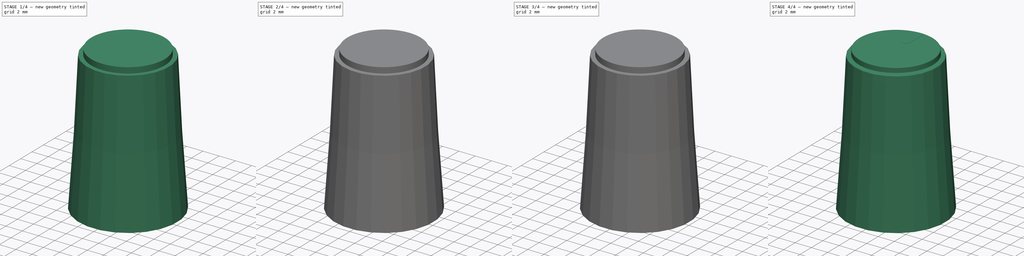
[diagram: build sequence overview — one tinted view per stage of 4, left to right]
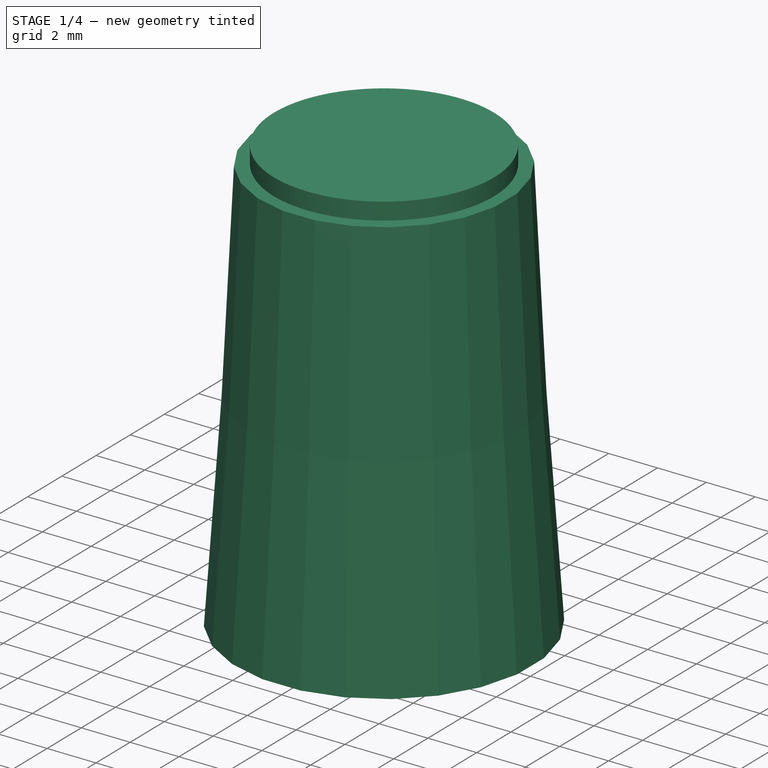
[diagram: stage 1 of 4 — iso view after this stage's code; geometry added in this stage tinted green]
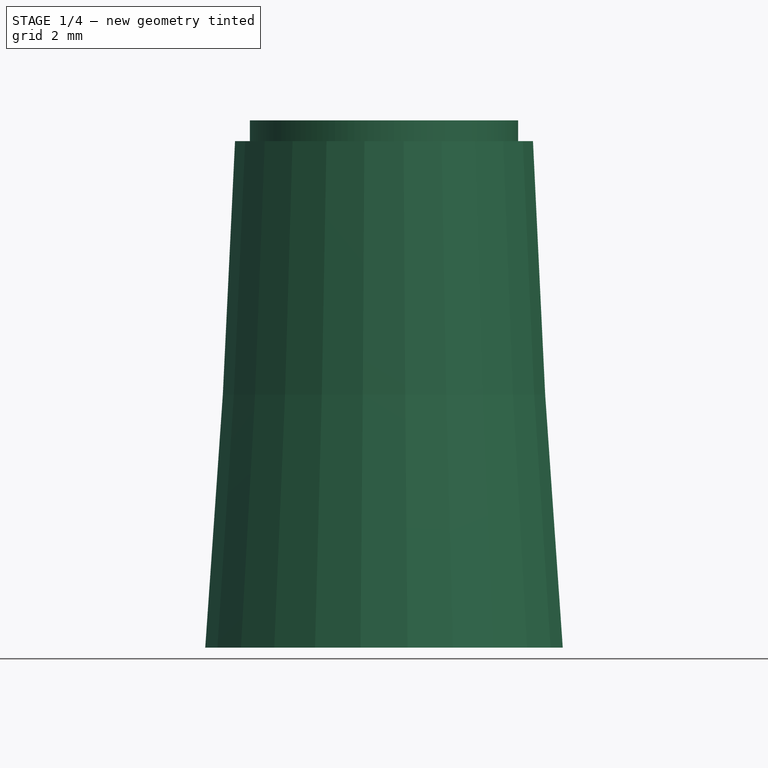
[diagram: stage 1 of 4 — front view after this stage's code; geometry added in this stage tinted green]
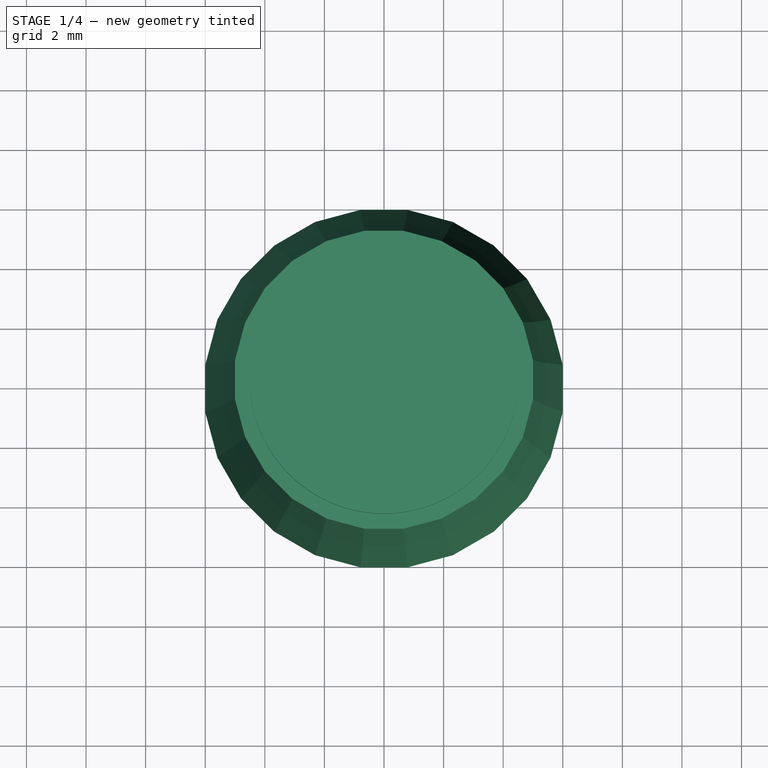
[diagram: stage 1 of 4 — top view after this stage's code; geometry added in this stage tinted green]
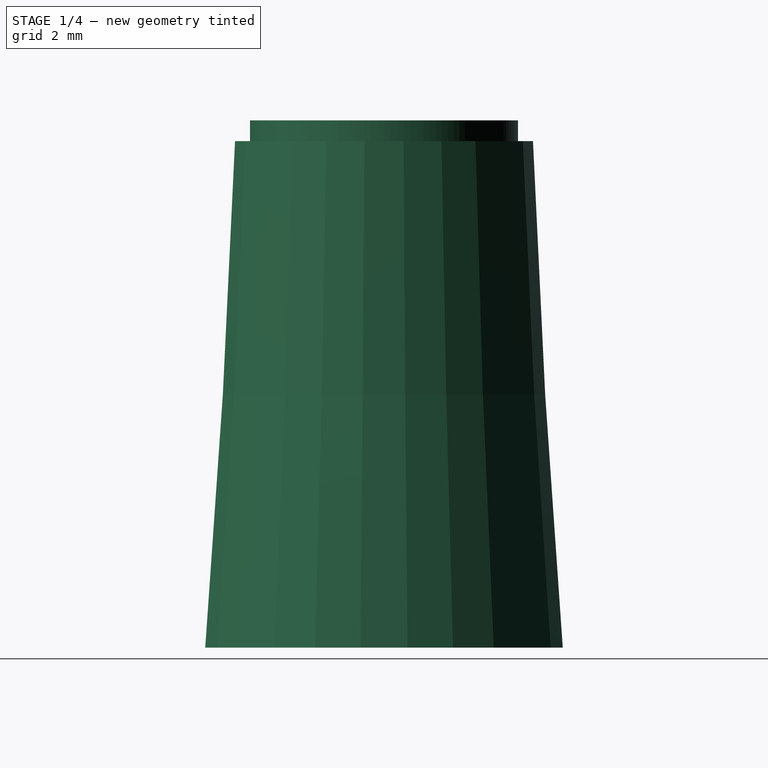
[diagram: stage 1 of 4 — right view after this stage's code; geometry added in this stage tinted green]
FCSTD DOCUMENT  (FreeCAD 0.18R15969 (Git))
Label: pot_cap_cliff_indicator
License: All rights reserved
LicenseURL: http://en.wikipedia.org/wiki/All_rights_reserved
objects: Sketcher::SketchObject×8, PartDesign::Pocket×3, PartDesign::Pad×2, PartDesign::Body×2, PartDesign::Chamfer×2, PartDesign::AdditiveLoft×1, PartDesign::Fillet×1
note: 25 computed .brp shape members not serialized (recipe doc carries the construction recipe); baked Part::Feature solids carry a one-line shape summary decoded from their .brp

FEATURE [Sketcher::SketchObject] Sketch
  MapMode = 5
  Support = -> [XY_Plane]
  sketch-geometry (25):
    g0: LineSegment StartX=-0.789915 StartY=6 StartZ=0 EndX=-2.31591 EndY=5.59111 EndZ=0
    g1: LineSegment StartX=-2.31591 StartY=5.59111 StartZ=0 EndX=-3.68409 EndY=4.80119 EndZ=0
    g2: LineSegment StartX=-3.68409 StartY=4.80119 StartZ=0 EndX=-4.80119 EndY=3.68409 EndZ=0
    g3: LineSegment StartX=-4.80119 StartY=3.68409 StartZ=0 EndX=-5.59111 EndY=2.31591 EndZ=0
    g4: LineSegment StartX=-5.59111 StartY=2.31591 StartZ=0 EndX=-6 EndY=0.789915 EndZ=0
    g5: LineSegment StartX=-6 StartY=0.789915 StartZ=0 EndX=-6 EndY=-0.789915 EndZ=0
    g6: LineSegment StartX=-6 StartY=-0.789915 StartZ=0 EndX=-5.59111 EndY=-2.31591 EndZ=0
    g7: LineSegment StartX=-5.59111 StartY=-2.31591 StartZ=0 EndX=-4.80119 EndY=-3.68409 EndZ=0
    g8: LineSegment StartX=-4.80119 StartY=-3.68409 StartZ=0 EndX=-3.68409 EndY=-4.80119 EndZ=0
    g9: LineSegment StartX=-3.68409 StartY=-4.80119 StartZ=0 EndX=-2.31591 EndY=-5.59111 EndZ=0
    g10: LineSegment StartX=-2.31591 StartY=-5.59111 StartZ=0 EndX=-0.789915 EndY=-6 EndZ=0
    g11: LineSegment StartX=-0.789915 StartY=-6 StartZ=0 EndX=0.789915 EndY=-6 EndZ=0
    g12: LineSegment StartX=0.789915 StartY=-6 StartZ=0 EndX=2.31591 EndY=-5.59111 EndZ=0
    g13: LineSegment StartX=2.31591 StartY=-5.59111 StartZ=0 EndX=3.68409 EndY=-4.80119 EndZ=0
    g14: LineSegment StartX=3.68409 StartY=-4.80119 StartZ=0 EndX=4.80119 EndY=-3.68409 EndZ=0
    g15: LineSegment StartX=4.80119 StartY=-3.68409 StartZ=0 EndX=5.59111 EndY=-2.31591 EndZ=0
    g16: LineSegment StartX=5.59111 StartY=-2.31591 StartZ=0 EndX=6 EndY=-0.789915 EndZ=0
    g17: LineSegment StartX=6 StartY=-0.789915 StartZ=0 EndX=6 EndY=0.789915 EndZ=0
    g18: LineSegment StartX=6 StartY=0.789915 StartZ=0 EndX=5.59111 EndY=2.31591 EndZ=0
    g19: LineSegment StartX=5.59111 StartY=2.31591 StartZ=0 EndX=4.80119 EndY=3.68409 EndZ=0
    g20: LineSegment StartX=4.80119 StartY=3.68409 StartZ=0 EndX=3.68409 EndY=4.80119 EndZ=0
    g21: LineSegment StartX=3.68409 StartY=4.80119 StartZ=0 EndX=2.31591 EndY=5.59111 EndZ=0
    g22: LineSegment StartX=2.31591 StartY=5.59111 StartZ=0 EndX=0.789915 EndY=6 EndZ=0
    g23: LineSegment StartX=0.789915 StartY=6 StartZ=0 EndX=-0.789915 EndY=6 EndZ=0
    g24: Circle [constr] CenterX=0 CenterY=0 CenterZ=0 NormalX=0 NormalY=0 NormalZ=1 AngleXU=0 Radius=6.05177
  constraints (52):
    c: Coincident(g0,g1)
    c: Coincident(g1,g2)
    c: Coincident(g2,g3)
    c: Coincident(g3,g4)
    c: Coincident(g4,g5)
    c: Coincident(g5,g6)
    c: Coincident(g6,g7)
    c: Coincident(g7,g8)
    c: Coincident(g8,g9)
    c: Coincident(g9,g10)
    c: Coincident(g10,g11)
    c: Coincident(g11,g12)
    c: Coincident(g12,g13)
    c: Coincident(g13,g14)
    c: Coincident(g14,g15)
    c: Coincident(g15,g16)
    c: Coincident(g16,g17)
    c: Coincident(g17,g18)
    c: Coincident(g18,g19)
    c: Coincident(g19,g20)
    c: Coincident(g20,g21)
    c: Coincident(g21,g22)
    c: Coincident(g22,g23)
    c: Coincident(g23,g0)
    c: Equal(g0, g1-g23) x23
    c: PointOnObject(g0,g24)
    c: PointOnObject(g1,g24)
    c: PointOnObject(g2,g24)
    c: PointOnObject(g3,g24)
    c: PointOnObject(g4,g24)
    c: PointOnObject(g5,g24)
    c: PointOnObject(g6,g24)
    c: PointOnObject(g7,g24)
    c: PointOnObject(g8,g24)
    c: PointOnObject(g9,g24)
    c: PointOnObject(g10,g24)
    c: PointOnObject(g11,g24)
    c: PointOnObject(g12,g24)
    c: PointOnObject(g13,g24)
    c: PointOnObject(g14,g24)
    c: PointOnObject(g15,g24)
    c: PointOnObject(g16,g24)
    c: PointOnObject(g17,g24)
    c: PointOnObject(g18,g24)
    c: PointOnObject(g19,g24)
    c: PointOnObject(g20,g24)
    c: PointOnObject(g21,g24)
    c: PointOnObject(g22,g24)
    c: PointOnObject(g23,g24)
    c: Coincident(g24,g-1)
    c: Horizontal(g23)
    c: DistanceX(g4,g17) = 12
FEATURE [Sketcher::SketchObject] Sketch001
  AttachmentOffset = pos=(0,0,7) rot=(0,0,1;0rad)
  MapMode = 5
  Placement = pos=(0,0,7) rot=(0,0,1;0rad)
  Support = -> [XY_Plane]
  sketch-geometry (25):
    g0: LineSegment StartX=-0.724089 StartY=5.5 StartZ=0 EndX=-2.12292 EndY=5.12518 EndZ=0
    g1: LineSegment StartX=-2.12292 StartY=5.12518 StartZ=0 EndX=-3.37708 EndY=4.4011 EndZ=0
    g2: LineSegment StartX=-3.37708 StartY=4.4011 StartZ=0 EndX=-4.4011 EndY=3.37708 EndZ=0
    g3: LineSegment StartX=-4.4011 StartY=3.37708 StartZ=0 EndX=-5.12518 EndY=2.12292 EndZ=0
    g4: LineSegment StartX=-5.12518 StartY=2.12292 StartZ=0 EndX=-5.5 EndY=0.724089 EndZ=0
    g5: LineSegment StartX=-5.5 StartY=0.724089 StartZ=0 EndX=-5.5 EndY=-0.724089 EndZ=0
    g6: LineSegment StartX=-5.5 StartY=-0.724089 StartZ=0 EndX=-5.12518 EndY=-2.12292 EndZ=0
    g7: LineSegment StartX=-5.12518 StartY=-2.12292 StartZ=0 EndX=-4.4011 EndY=-3.37708 EndZ=0
    g8: LineSegment StartX=-4.4011 StartY=-3.37708 StartZ=0 EndX=-3.37708 EndY=-4.4011 EndZ=0
    g9: LineSegment StartX=-3.37708 StartY=-4.4011 StartZ=0 EndX=-2.12292 EndY=-5.12518 EndZ=0
    g10: LineSegment StartX=-2.12292 StartY=-5.12518 StartZ=0 EndX=-0.724089 EndY=-5.5 EndZ=0
    g11: LineSegment StartX=-0.724089 StartY=-5.5 StartZ=0 EndX=0.724089 EndY=-5.5 EndZ=0
    g12: LineSegment StartX=0.724089 StartY=-5.5 StartZ=0 EndX=2.12292 EndY=-5.12518 EndZ=0
    g13: LineSegment StartX=2.12292 StartY=-5.12518 StartZ=0 EndX=3.37708 EndY=-4.4011 EndZ=0
    g14: LineSegment StartX=3.37708 StartY=-4.4011 StartZ=0 EndX=4.4011 EndY=-3.37708 EndZ=0
    g15: LineSegment StartX=4.4011 StartY=-3.37708 StartZ=0 EndX=5.12518 EndY=-2.12292 EndZ=0
    g16: LineSegment StartX=5.12518 StartY=-2.12292 StartZ=0 EndX=5.5 EndY=-0.724089 EndZ=0
    g17: LineSegment StartX=5.5 StartY=-0.724089 StartZ=0 EndX=5.5 EndY=0.724089 EndZ=0
    g18: LineSegment StartX=5.5 StartY=0.724089 StartZ=0 EndX=5.12518 EndY=2.12292 EndZ=0
    g19: LineSegment StartX=5.12518 StartY=2.12292 StartZ=0 EndX=4.4011 EndY=3.37708 EndZ=0
    g20: LineSegment StartX=4.4011 StartY=3.37708 StartZ=0 EndX=3.37708 EndY=4.4011 EndZ=0
    g21: LineSegment StartX=3.37708 StartY=4.4011 StartZ=0 EndX=2.12292 EndY=5.12518 EndZ=0
    g22: LineSegment StartX=2.12292 StartY=5.12518 StartZ=0 EndX=0.724089 EndY=5.5 EndZ=0
    g23: LineSegment StartX=0.724089 StartY=5.5 StartZ=0 EndX=-0.724089 EndY=5.5 EndZ=0
    g24: Circle [constr] CenterX=0 CenterY=0 CenterZ=0 NormalX=0 NormalY=0 NormalZ=1 AngleXU=0 Radius=5.54746
  constraints (52):
    c: Coincident(g0,g1)
    c: Coincident(g1,g2)
    c: Coincident(g2,g3)
    c: Coincident(g3,g4)
    c: Coincident(g4,g5)
    c: Coincident(g5,g6)
    c: Coincident(g6,g7)
    c: Coincident(g7,g8)
    c: Coincident(g8,g9)
    c: Coincident(g9,g10)
    c: Coincident(g10,g11)
    c: Coincident(g11,g12)
    c: Coincident(g12,g13)
    c: Coincident(g13,g14)
    c: Coincident(g14,g15)
    c: Coincident(g15,g16)
    c: Coincident(g16,g17)
    c: Coincident(g17,g18)
    c: Coincident(g18,g19)
    c: Coincident(g19,g20)
    c: Coincident(g20,g21)
    c: Coincident(g21,g22)
    c: Coincident(g22,g23)
    c: Coincident(g23,g0)
    c: Equal(g0, g1-g23) x23
    c: PointOnObject(g0,g24)
    c: PointOnObject(g1,g24)
    c: PointOnObject(g2,g24)
    c: PointOnObject(g3,g24)
    c: PointOnObject(g4,g24)
    c: PointOnObject(g5,g24)
    c: PointOnObject(g6,g24)
    c: PointOnObject(g7,g24)
    c: PointOnObject(g8,g24)
    c: PointOnObject(g9,g24)
    c: PointOnObject(g10,g24)
    c: PointOnObject(g11,g24)
    c: PointOnObject(g12,g24)
    c: PointOnObject(g13,g24)
    c: PointOnObject(g14,g24)
    c: PointOnObject(g15,g24)
    c: PointOnObject(g16,g24)
    c: PointOnObject(g17,g24)
    c: PointOnObject(g18,g24)
    c: PointOnObject(g19,g24)
    c: PointOnObject(g20,g24)
    c: PointOnObject(g21,g24)
    c: PointOnObject(g22,g24)
    c: PointOnObject(g23,g24)
    c: Coincident(g24,g-1)
    c: Horizontal(g23)
    c: DistanceX(g4,g17) = 11
FEATURE [Sketcher::SketchObject] Sketch002
  AttachmentOffset = pos=(0,0,17) rot=(0,0,1;0rad)
  MapMode = 5
  Placement = pos=(0,0,17) rot=(0,0,1;0rad)
  Support = -> [XY_Plane]
  sketch-geometry (25):
    g0: LineSegment StartX=-4.65926 StartY=1.92993 StartZ=0 EndX=-5 EndY=0.658262 EndZ=0
    g1: LineSegment StartX=-5 StartY=0.658262 StartZ=0 EndX=-5 EndY=-0.658262 EndZ=0
    g2: LineSegment StartX=-5 StartY=-0.658262 StartZ=0 EndX=-4.65926 EndY=-1.92993 EndZ=0
    g3: LineSegment StartX=-4.65926 StartY=-1.92993 StartZ=0 EndX=-4.001 EndY=-3.07007 EndZ=0
    g4: LineSegment StartX=-4.001 StartY=-3.07007 StartZ=0 EndX=-3.07007 EndY=-4.001 EndZ=0
    g5: LineSegment StartX=-3.07007 StartY=-4.001 StartZ=0 EndX=-1.92993 EndY=-4.65926 EndZ=0
    g6: LineSegment StartX=-1.92993 StartY=-4.65926 StartZ=0 EndX=-0.658262 EndY=-5 EndZ=0
    g7: LineSegment StartX=-0.658262 StartY=-5 StartZ=0 EndX=0.658262 EndY=-5 EndZ=0
    g8: LineSegment StartX=0.658262 StartY=-5 StartZ=0 EndX=1.92993 EndY=-4.65926 EndZ=0
    g9: LineSegment StartX=1.92993 StartY=-4.65926 StartZ=0 EndX=3.07007 EndY=-4.001 EndZ=0
    g10: LineSegment StartX=3.07007 StartY=-4.001 StartZ=0 EndX=4.001 EndY=-3.07007 EndZ=0
    g11: LineSegment StartX=4.001 StartY=-3.07007 StartZ=0 EndX=4.65926 EndY=-1.92993 EndZ=0
    g12: LineSegment StartX=4.65926 StartY=-1.92993 StartZ=0 EndX=5 EndY=-0.658262 EndZ=0
    g13: LineSegment StartX=5 StartY=-0.658262 StartZ=0 EndX=5 EndY=0.658262 EndZ=0
    g14: LineSegment StartX=5 StartY=0.658262 StartZ=0 EndX=4.65926 EndY=1.92993 EndZ=0
    g15: LineSegment StartX=4.65926 StartY=1.92993 StartZ=0 EndX=4.001 EndY=3.07007 EndZ=0
    g16: LineSegment StartX=4.001 StartY=3.07007 StartZ=0 EndX=3.07007 EndY=4.001 EndZ=0
    g17: LineSegment StartX=3.07007 StartY=4.001 StartZ=0 EndX=1.92993 EndY=4.65926 EndZ=0
    g18: LineSegment StartX=1.92993 StartY=4.65926 StartZ=0 EndX=0.658262 EndY=5 EndZ=0
    g19: LineSegment StartX=0.658262 StartY=5 StartZ=0 EndX=-0.658262 EndY=5 EndZ=0
    g20: LineSegment StartX=-0.658262 StartY=5 StartZ=0 EndX=-1.92993 EndY=4.65926 EndZ=0
    g21: LineSegment StartX=-1.92993 StartY=4.65926 StartZ=0 EndX=-3.07007 EndY=4.001 EndZ=0
    g22: LineSegment StartX=-3.07007 StartY=4.001 StartZ=0 EndX=-4.001 EndY=3.07007 EndZ=0
    g23: LineSegment StartX=-4.001 StartY=3.07007 StartZ=0 EndX=-4.65926 EndY=1.92993 EndZ=0
    g24: Circle [constr] CenterX=0 CenterY=0 CenterZ=0 NormalX=0 NormalY=0 NormalZ=1 AngleXU=0 Radius=5.04314
  constraints (52):
    c: Coincident(g0,g1)
    c: Coincident(g1,g2)
    c: Coincident(g2,g3)
    c: Coincident(g3,g4)
    c: Coincident(g4,g5)
    c: Coincident(g5,g6)
    c: Coincident(g6,g7)
    c: Coincident(g7,g8)
    c: Coincident(g8,g9)
    c: Coincident(g9,g10)
    c: Coincident(g10,g11)
    c: Coincident(g11,g12)
    c: Coincident(g12,g13)
    c: Coincident(g13,g14)
    c: Coincident(g14,g15)
    c: Coincident(g15,g16)
    c: Coincident(g16,g17)
    c: Coincident(g17,g18)
    c: Coincident(g18,g19)
    c: Coincident(g19,g20)
    c: Coincident(g20,g21)
    c: Coincident(g21,g22)
    c: Coincident(g22,g23)
    c: Coincident(g23,g0)
    c: Equal(g0, g1-g23) x23
    c: PointOnObject(g0,g24)
    c: PointOnObject(g1,g24)
    c: PointOnObject(g2,g24)
    c: PointOnObject(g3,g24)
    c: PointOnObject(g4,g24)
    c: PointOnObject(g5,g24)
    c: PointOnObject(g6,g24)
    c: PointOnObject(g7,g24)
    c: PointOnObject(g8,g24)
    c: PointOnObject(g9,g24)
    c: PointOnObject(g10,g24)
    c: PointOnObject(g11,g24)
    c: PointOnObject(g12,g24)
    c: PointOnObject(g13,g24)
    c: PointOnObject(g14,g24)
    c: PointOnObject(g15,g24)
    c: PointOnObject(g16,g24)
    c: PointOnObject(g17,g24)
    c: PointOnObject(g18,g24)
    c: PointOnObject(g19,g24)
    c: PointOnObject(g20,g24)
    c: PointOnObject(g21,g24)
    c: PointOnObject(g22,g24)
    c: PointOnObject(g23,g24)
    c: Coincident(g24,g-1)
    c: Horizontal(g19)
    c: DistanceX(g0,g13) = 10
FEATURE [PartDesign::AdditiveLoft] AdditiveLoft
  Closed = false
  Profile = -> Sketch
  Refine = true
  Ruled = false
  Sections = -> [Sketch001,Sketch002]
FEATURE [Sketcher::SketchObject] Sketch003
  MapMode = 5
  Placement = pos=(0,0,17) rot=(0,0,1;0rad)
  Support = -> [AdditiveLoft]
  sketch-geometry (1):
    g0: Circle CenterX=0 CenterY=0 CenterZ=0 NormalX=0 NormalY=0 NormalZ=1 AngleXU=0 Radius=4.5
  constraints (2):
    c: Coincident(g0,g-1)
    c: Radius(g0) = 4.5
FEATURE [PartDesign::Pad] Pad
  BaseFeature = -> AdditiveLoft
  Length = 0.7
  Length2 = 100
  Profile = -> Sketch003
  Refine = true
  Type = 0
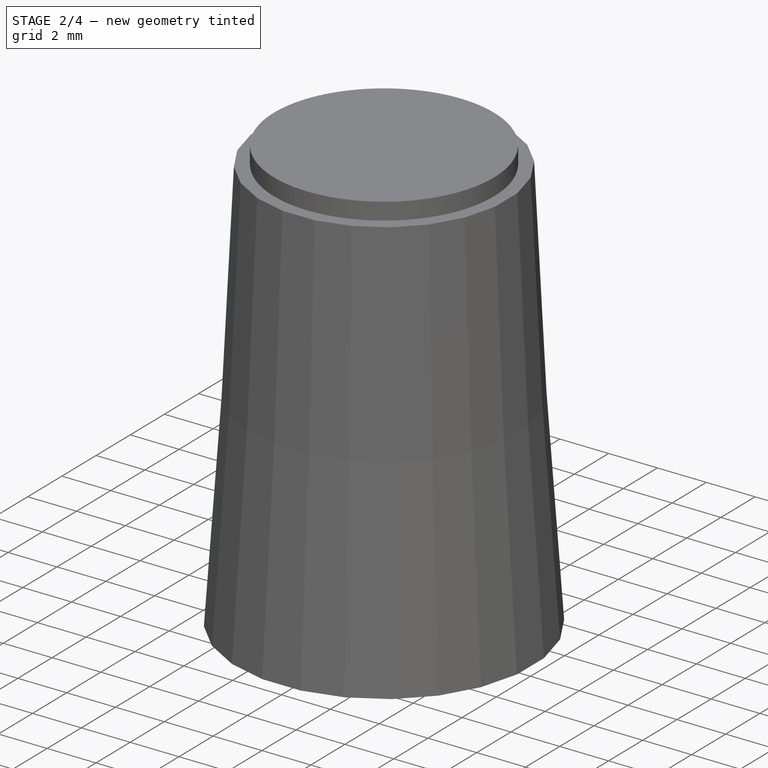
[diagram: stage 2 of 4 — iso view after this stage's code; geometry added in this stage tinted green]
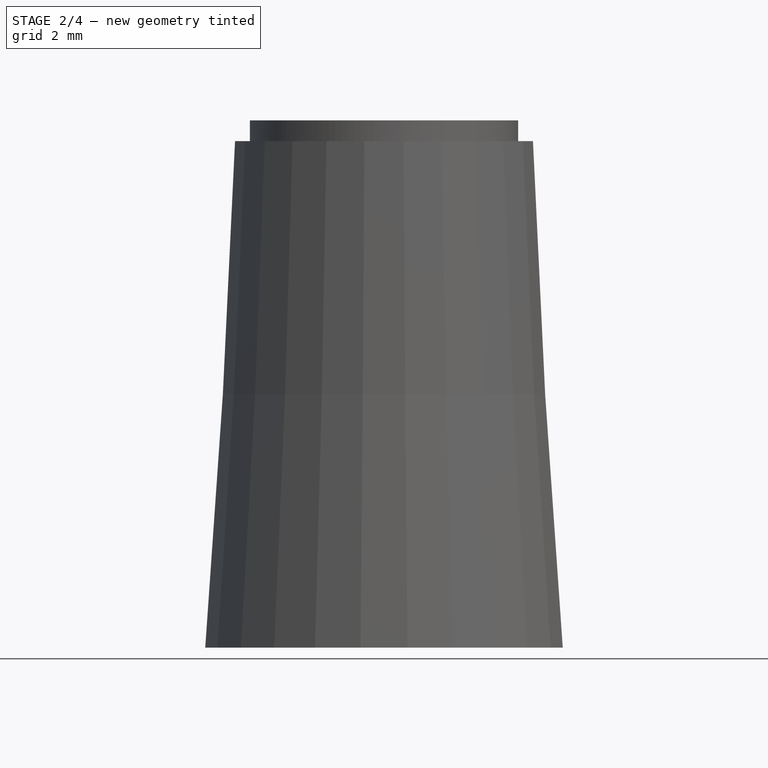
[diagram: stage 2 of 4 — front view after this stage's code; geometry added in this stage tinted green]
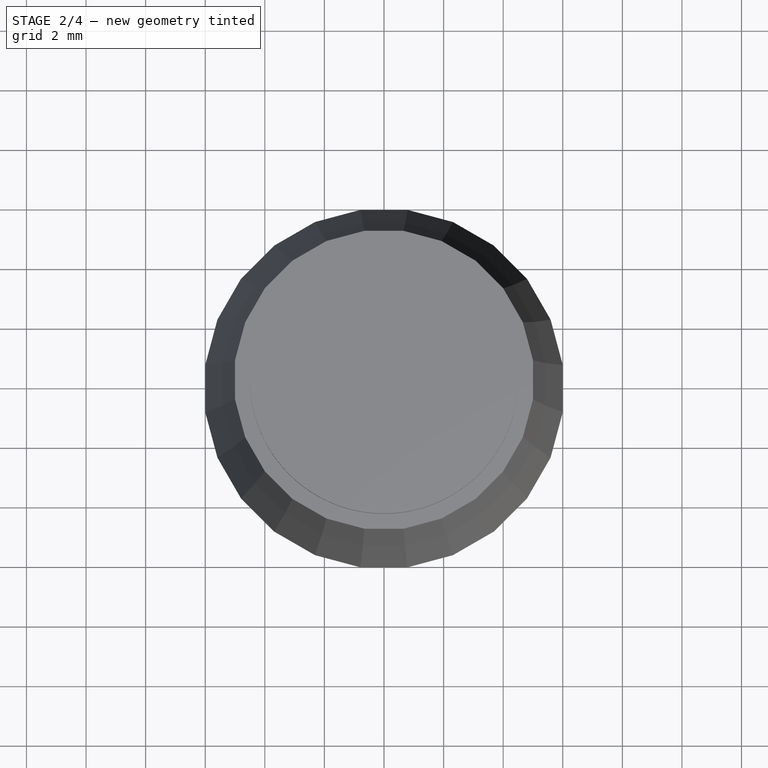
[diagram: stage 2 of 4 — top view after this stage's code; geometry added in this stage tinted green]
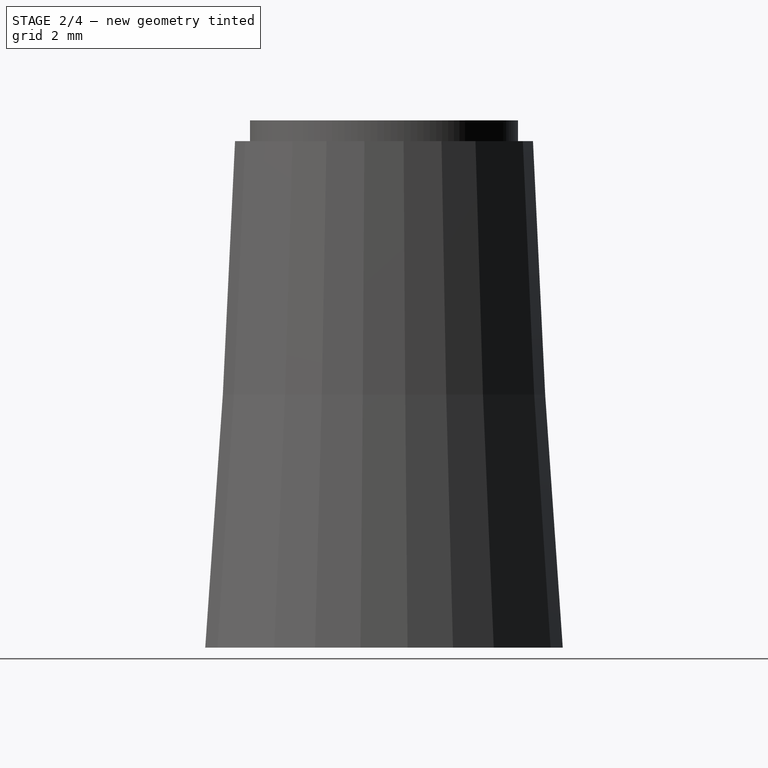
[diagram: stage 2 of 4 — right view after this stage's code; geometry added in this stage tinted green]
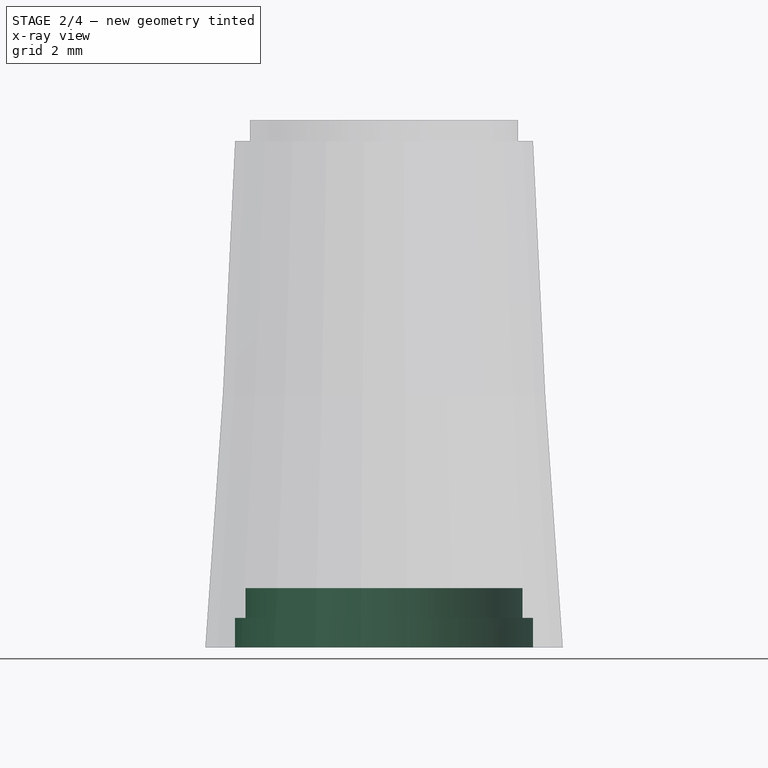
[diagram: stage 2 of 4 — x-ray composite at the front view; earlier geometry ghosted, this stage's added geometry solid]
FEATURE [PartDesign::Body] Body001  label="Indicator"
  Group = -> [Sketch004,Pad001]
  Origin = -> Origin001
  Tip = -> Pad001
FEATURE [Sketcher::SketchObject] Sketch005
  MapMode = 5
  Placement = pos=(0,0,0) rot=(1,0,0;3.14159rad)
  Support = -> [Pad]
  sketch-geometry (1):
    g0: Circle CenterX=0 CenterY=0 CenterZ=0 NormalX=0 NormalY=0 NormalZ=1 AngleXU=0 Radius=5
  constraints (2):
    c: Coincident(g0,g-1)
    c: Radius(g0) = 5
FEATURE [PartDesign::Pocket] Pocket
  BaseFeature = -> Pad
  Length = 1
  Length2 = 100
  Profile = -> Sketch005
  Refine = true
  Type = 0
FEATURE [Sketcher::SketchObject] Sketch006
  MapMode = 5
  Placement = pos=(0,0,1) rot=(1,0,0;3.14159rad)
  Support = -> [Pocket]
  sketch-geometry (1):
    g0: Circle CenterX=0 CenterY=0 CenterZ=0 NormalX=0 NormalY=0 NormalZ=1 AngleXU=0 Radius=4.65
  constraints (2):
    c: Coincident(g0,g-1)
    c: Radius(g0) = 4.65
FEATURE [PartDesign::Pocket] Pocket001
  BaseFeature = -> Pocket
  Length = 1
  Length2 = 100
  Profile = -> Sketch006
  Refine = true
  Type = 0
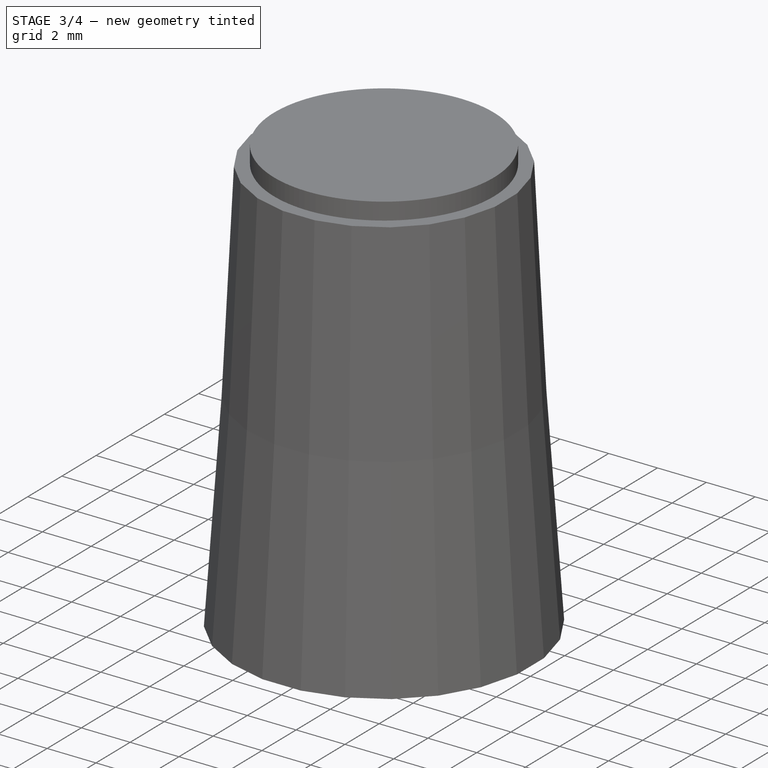
[diagram: stage 3 of 4 — iso view after this stage's code; geometry added in this stage tinted green]
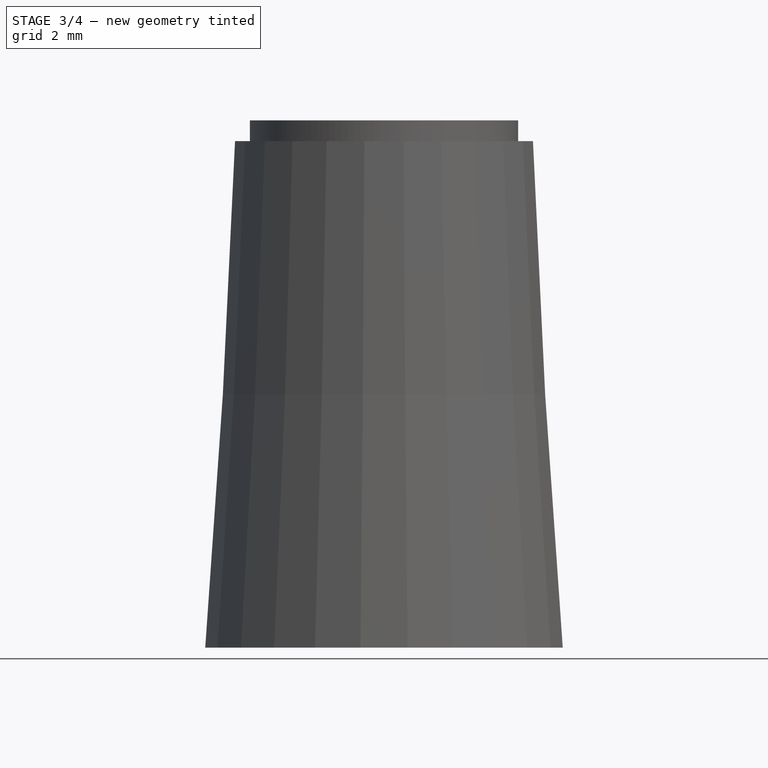
[diagram: stage 3 of 4 — front view after this stage's code; geometry added in this stage tinted green]
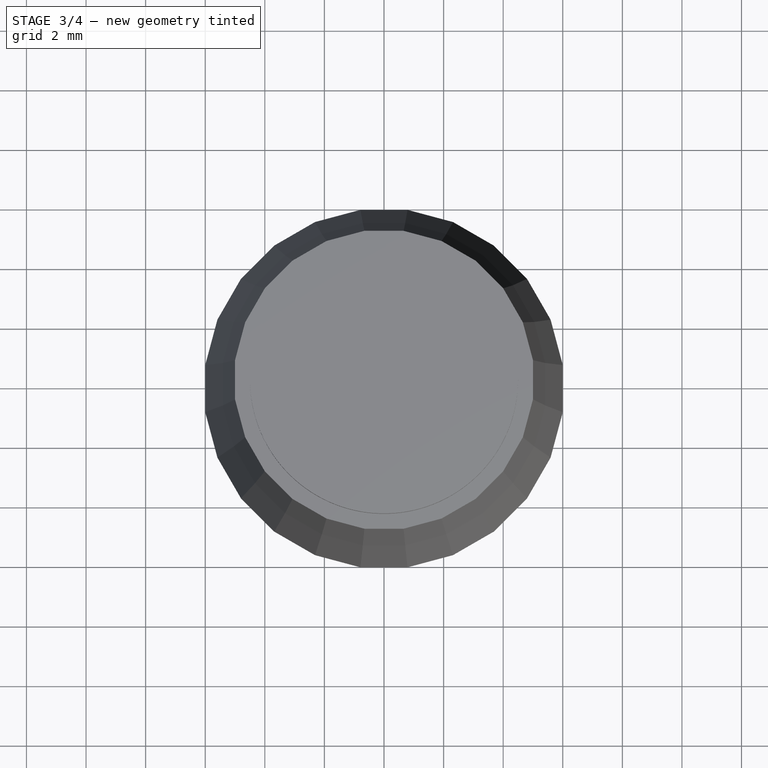
[diagram: stage 3 of 4 — top view after this stage's code; geometry added in this stage tinted green]
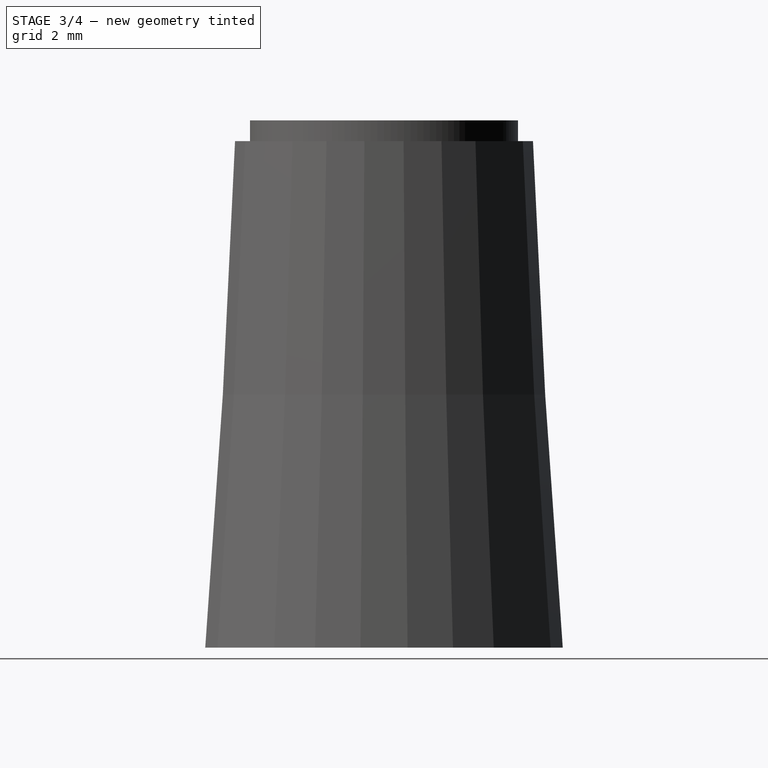
[diagram: stage 3 of 4 — right view after this stage's code; geometry added in this stage tinted green]
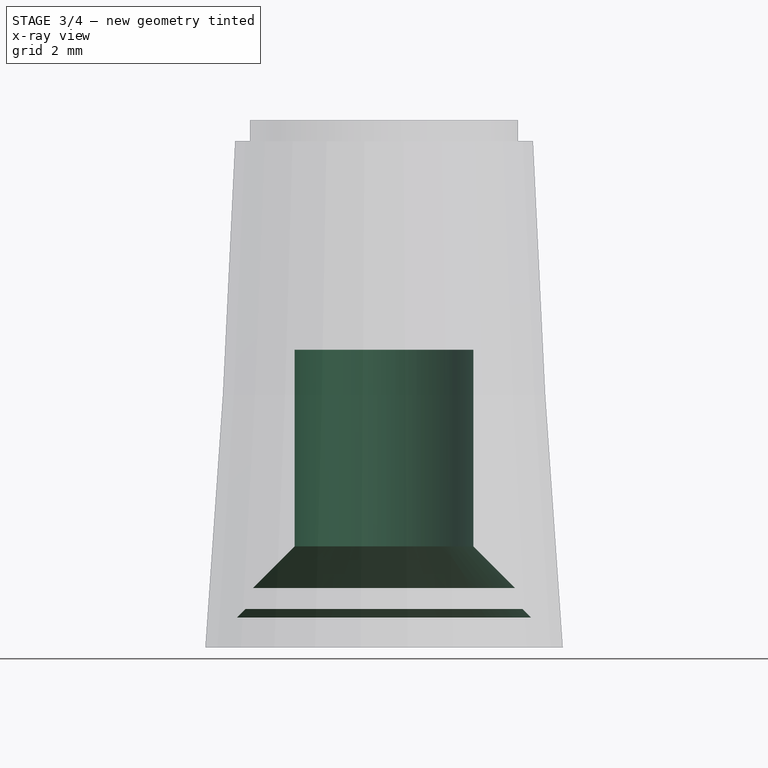
[diagram: stage 3 of 4 — x-ray composite at the front view; earlier geometry ghosted, this stage's added geometry solid]
FEATURE [Sketcher::SketchObject] Sketch007
  MapMode = 5
  Placement = pos=(0,0,2) rot=(1,0,0;3.14159rad)
  Support = -> [Pocket001]
  sketch-geometry (2):
    g0: ArcOfCircle CenterX=0 CenterY=0 CenterZ=0 NormalX=0 NormalY=0 NormalZ=1 AngleXU=0 Radius=3 StartAngle=2.19024 EndAngle=7.23453
    g1: LineSegment StartX=-1.74176 StartY=2.4426 StartZ=0 EndX=1.74176 EndY=2.4426 EndZ=0
  constraints (5):
    c: Coincident(g0,g-1)
    c: Coincident(g1,g0)
    c: Coincident(g1,g0)
    c: Horizontal(g1)
    c: Radius(g0) = 3
FEATURE [PartDesign::Pocket] Pocket002
  BaseFeature = -> Pocket001
  Length = 8
  Length2 = 100
  Profile = -> Sketch007
  Refine = true
  Type = 0
FEATURE [PartDesign::Chamfer] Chamfer
  Base = -> Pocket002 [Edge82,Edge83]
  BaseFeature = -> Pocket002
  Size = 1.4
FEATURE [PartDesign::Chamfer] Chamfer001
  Base = -> Chamfer [Edge8]
  BaseFeature = -> Chamfer
  Size = 0.3
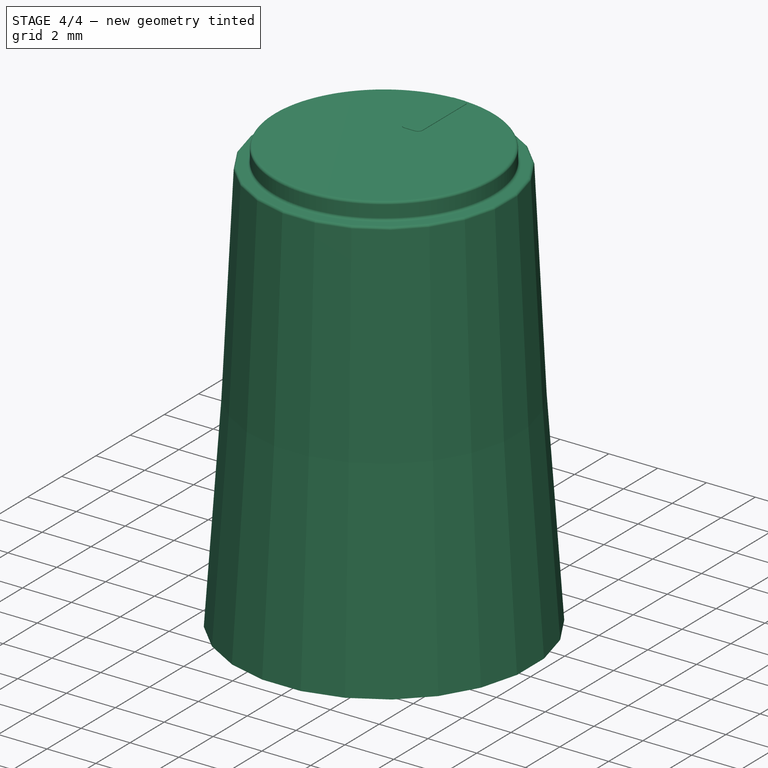
[diagram: stage 4 of 4 — iso view after this stage's code; geometry added in this stage tinted green]
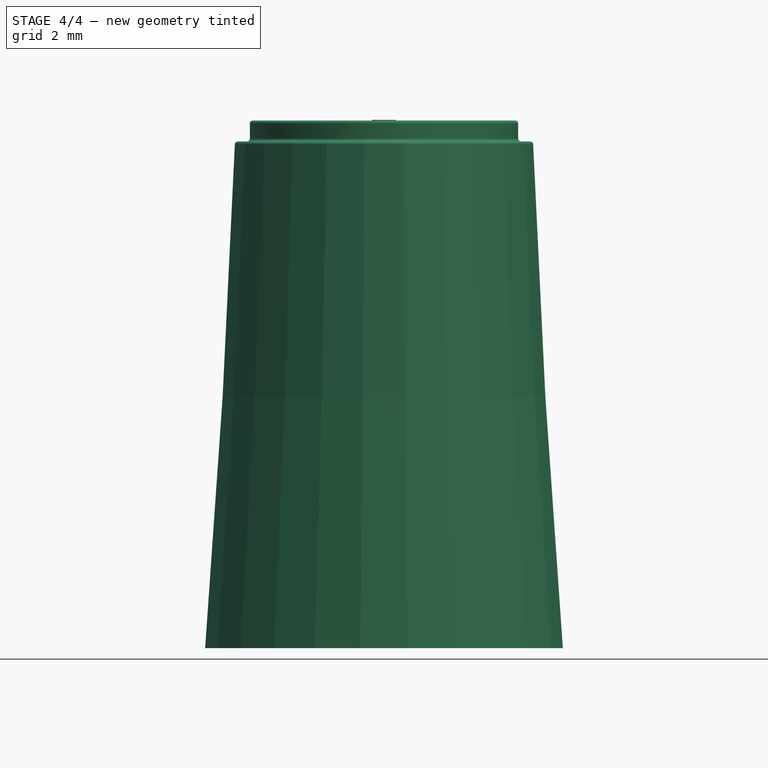
[diagram: stage 4 of 4 — front view after this stage's code; geometry added in this stage tinted green]
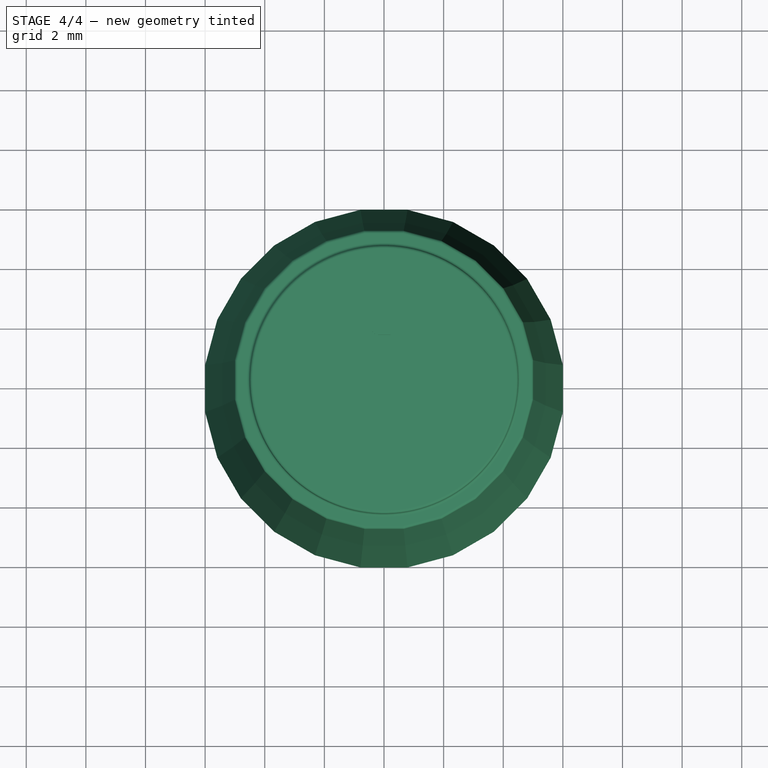
[diagram: stage 4 of 4 — top view after this stage's code; geometry added in this stage tinted green]
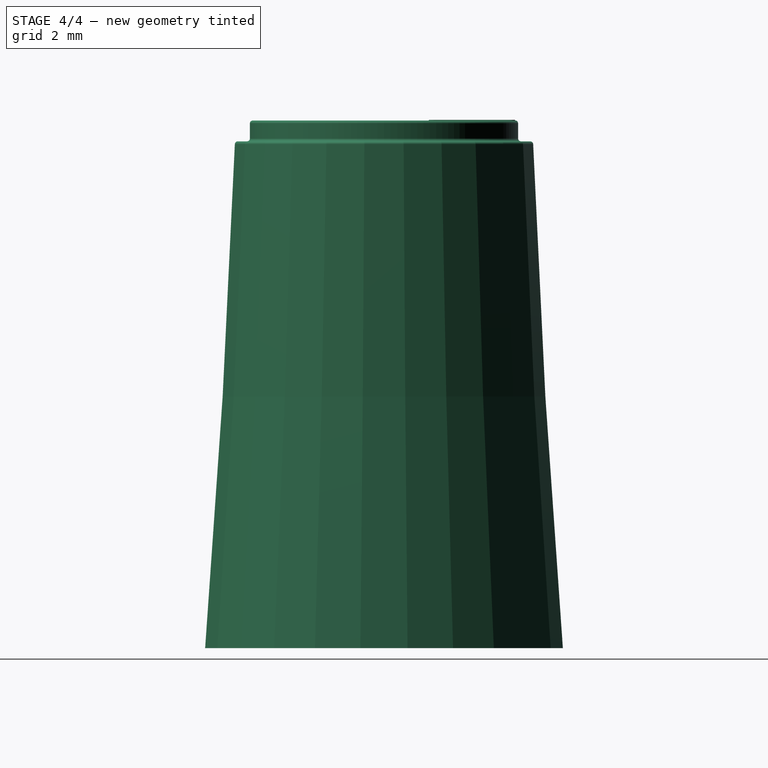
[diagram: stage 4 of 4 — right view after this stage's code; geometry added in this stage tinted green]
FEATURE [Sketcher::SketchObject] Sketch004
  AttachmentOffset = pos=(0,0,17.7) rot=(0,0,1;0rad)
  MapMode = 5
  Placement = pos=(0,0,17.7) rot=(0,0,1;0rad)
  Support = -> [XY_Plane001]
  sketch-geometry (10):
    g0: LineSegment StartX=-0.2 StartY=1.5 StartZ=0 EndX=0.2 EndY=1.5 EndZ=0
    g1: LineSegment StartX=0.4 StartY=1.7 StartZ=0 EndX=0.4 EndY=4.2 EndZ=0
    g2: LineSegment StartX=0.2 StartY=4.4 StartZ=0 EndX=-0.2 EndY=4.4 EndZ=0
    g3: LineSegment StartX=-0.4 StartY=4.2 StartZ=0 EndX=-0.4 EndY=1.7 EndZ=0
    g4: ArcOfCircle CenterX=-0.2 CenterY=1.7 CenterZ=0 NormalX=0 NormalY=0 NormalZ=1 AngleXU=0 Radius=0.2 StartAngle=3.14159 EndAngle=4.71239
    g5: ArcOfCircle CenterX=0.2 CenterY=1.7 CenterZ=0 NormalX=0 NormalY=0 NormalZ=1 AngleXU=0 Radius=0.2 StartAngle=4.71239 EndAngle=6.28319
    g6: ArcOfCircle CenterX=0.2 CenterY=4.2 CenterZ=0 NormalX=0 NormalY=0 NormalZ=1 AngleXU=0 Radius=0.2 StartAngle=1.4e-15 EndAngle=1.5708
    g7: ArcOfCircle CenterX=-0.2 CenterY=4.2 CenterZ=0 NormalX=0 NormalY=0 NormalZ=1 AngleXU=0 Radius=0.2 StartAngle=1.5708 EndAngle=3.14159
    g8: LineSegment [constr] StartX=-0.2 StartY=1.7 StartZ=0 EndX=0 EndY=0 EndZ=0
    g9: LineSegment [constr] StartX=0 StartY=0 StartZ=0 EndX=0.2 EndY=1.7 EndZ=0
  constraints (24):
    c: Horizontal(g0)
    c: Horizontal(g2)
    c: Vertical(g1)
    c: Vertical(g3)
    c: Tangent(g3,g4) = -1.5708
    c: Tangent(g0,g4) = -1.5708
    c: Tangent(g0,g5) = -1.5708
    c: Tangent(g1,g5) = -1.5708
    c: Tangent(g1,g6) = -1.5708
    c: Tangent(g2,g6) = -1.5708
    c: Tangent(g2,g7) = -1.5708
    c: Tangent(g3,g7) = -1.5708
    c: Radius(g7) = 0.2
    c: Equal(g7,g6)
    c: Equal(g7,g5)
    c: Equal(g7,g4)
    c: Coincident(g8,g4)
    c: Coincident(g8,g-1)
    c: Coincident(g9,g-1)
    c: Coincident(g9,g5)
    c: Equal(g9,g8)
    c: DistanceX(g3,g1) = 0.8
    c: DistanceY(g-1,g2) = 4.4
    c: DistanceY(g-1,g0) = 1.5
FEATURE [PartDesign::Pad] Pad001
  Length = 0.02
  Length2 = 100
  Profile = -> Sketch004
  Refine = true
  Type = 0
FEATURE [PartDesign::Fillet] Fillet
  Base = -> Chamfer001 [Edge93,Face36]
  BaseFeature = -> Chamfer001
  Radius = 0.1
FEATURE [PartDesign::Body] Body
  Group = -> [Sketch,Sketch001,Sketch002,AdditiveLoft,Sketch003,Pad,Sketch005,Pocket,Sketch006,Pocket001,Sketch007,Pocket002,Chamfer,Chamfer001,Fillet]
  Origin = -> Origin
  Tip = -> Fillet
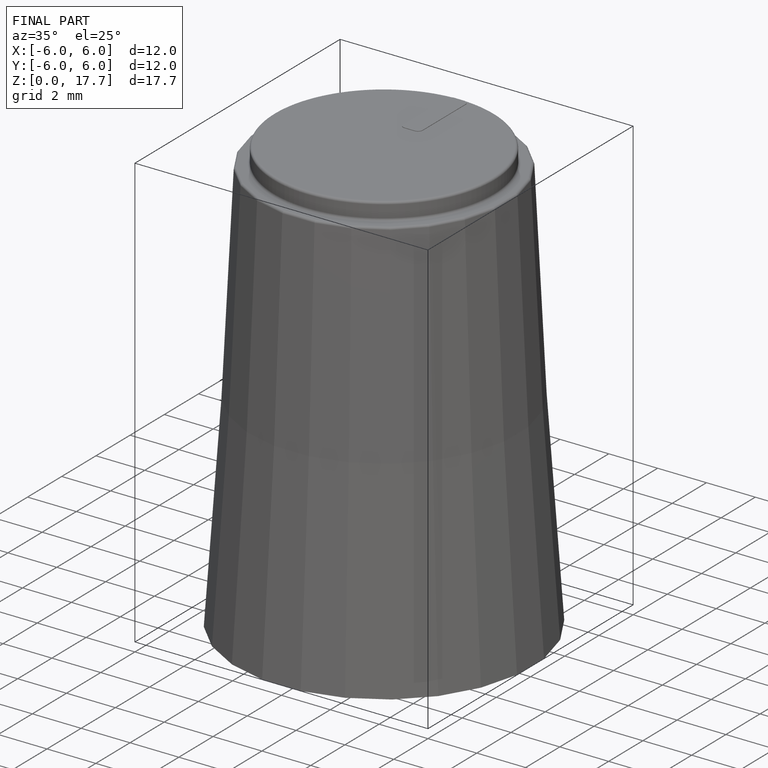
[diagram: finished part — iso view with bounding-box wireframe]
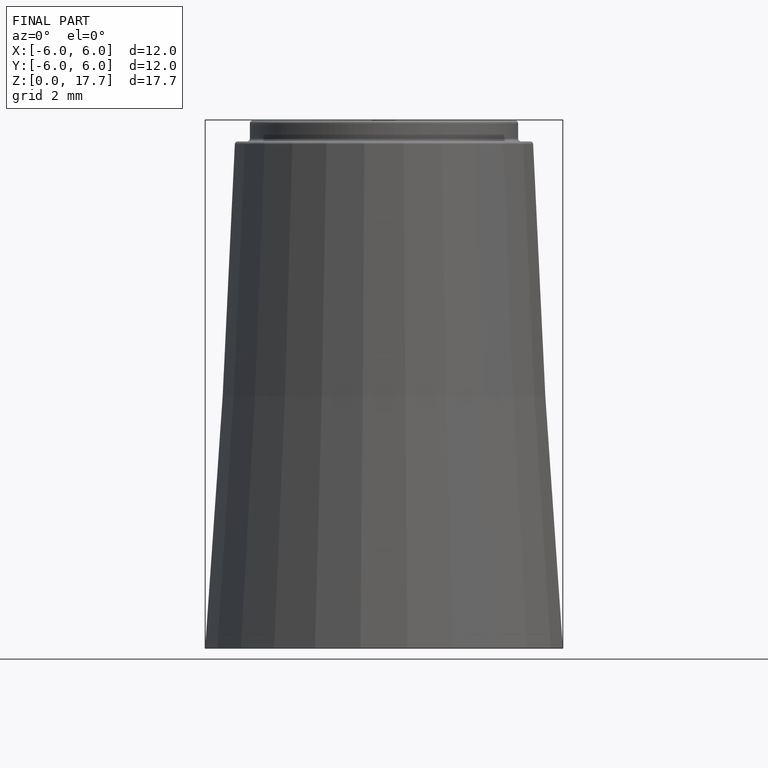
[diagram: finished part — front view with bounding-box wireframe]
